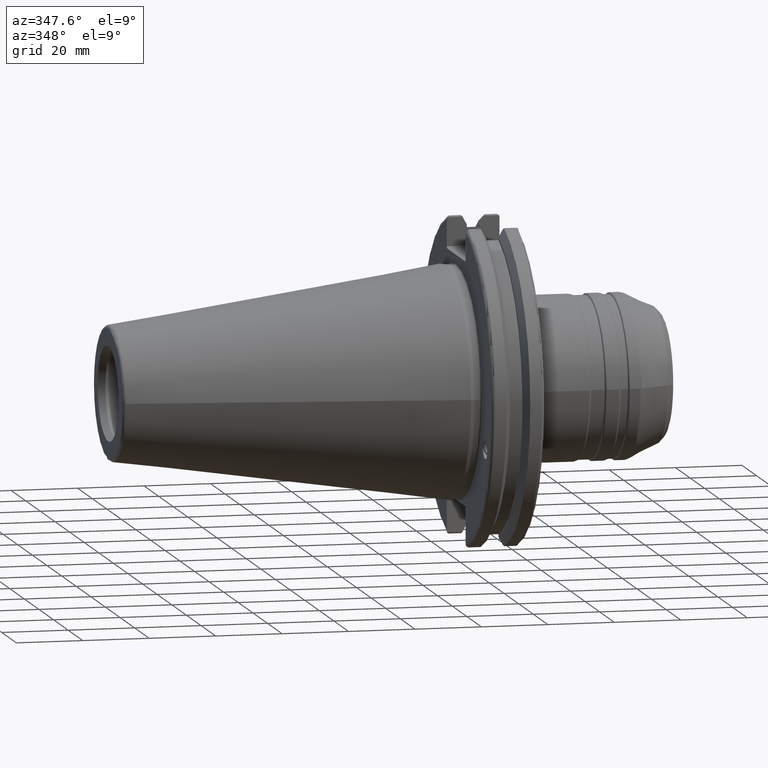
[diagram: clean part render]
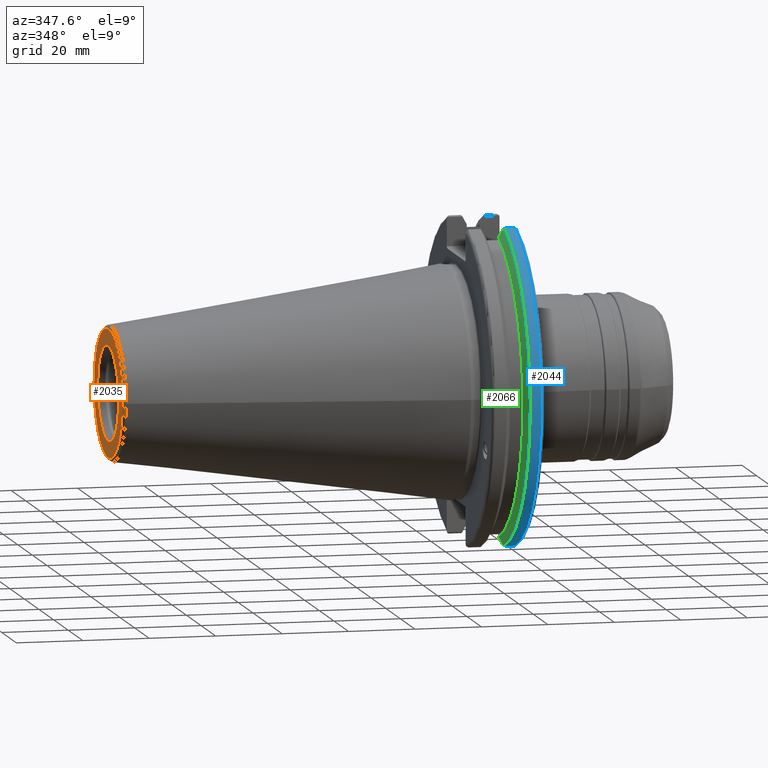
[diagram: same view with three faces highlighted in distinct colors, each labeled with its STEP entity id]
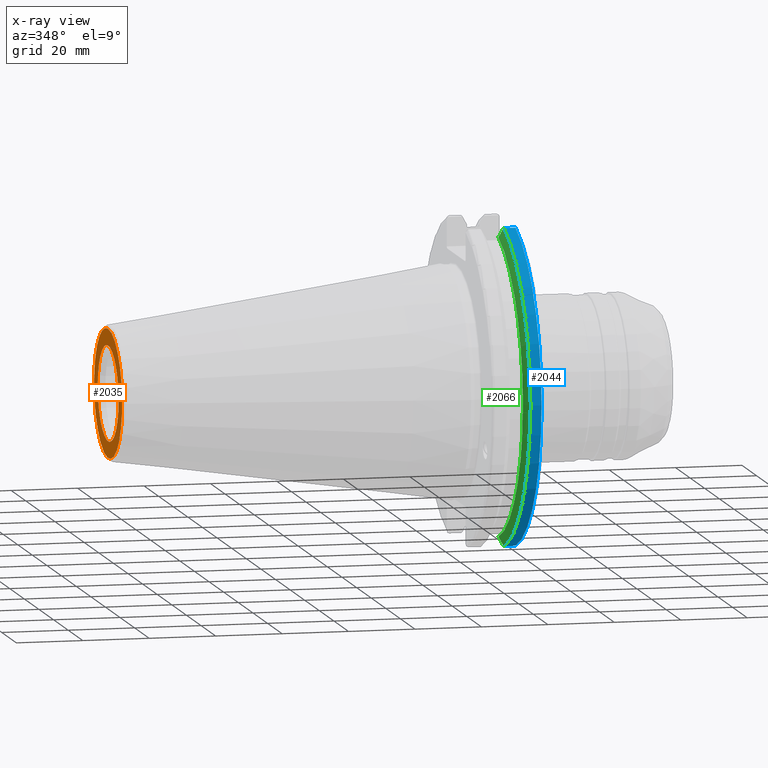
[diagram: x-ray of the same camera — body ghosted, the three highlighted faces saturated]
A machine part, auxiliary view with three faces highlighted in distinct colors.
The next image is the same camera in x-ray (body ghosted, the three faces saturated) — at least one of them is partly hidden behind the body in this view.
Their STEP definitions:

[orange] entity #2035 — the highlighted planar face has unit normal (-1, 0, 0).
#104=FACE_BOUND('',#547,.T.);
#122=PLANE('',#2323);
#431=FACE_OUTER_BOUND('',#546,.T.);
#546=EDGE_LOOP('',(#1791,#1792));
#547=EDGE_LOOP('',(#1793,#1794));
#725=CIRCLE('',#2320,19.2435889303637);
#726=CIRCLE('',#2321,19.2435889303637);
#728=CIRCLE('',#2324,14.2875);
#729=CIRCLE('',#2325,14.2875);
#956=VERTEX_POINT('',#3806);
#957=VERTEX_POINT('',#3808);
#958=VERTEX_POINT('',#3813);
#959=VERTEX_POINT('',#3814);
#1251=EDGE_CURVE('',#956,#957,#725,.T.);
#1252=EDGE_CURVE('',#957,#956,#726,.T.);
#1254=EDGE_CURVE('',#958,#959,#728,.T.);
#1255=EDGE_CURVE('',#959,#958,#729,.T.);
#1791=ORIENTED_EDGE('',*,*,#1252,.F.);
#1792=ORIENTED_EDGE('',*,*,#1251,.F.);
#1793=ORIENTED_EDGE('',*,*,#1254,.T.);
#1794=ORIENTED_EDGE('',*,*,#1255,.T.);
#2035=ADVANCED_FACE('',(#431,#104),#122,.T.);
#2320=AXIS2_PLACEMENT_3D('',#3809,#2922,#2923);
#2321=AXIS2_PLACEMENT_3D('',#3810,#2924,#2925);
#2323=AXIS2_PLACEMENT_3D('',#3812,#2928,#2929);
#2324=AXIS2_PLACEMENT_3D('',#3815,#2930,#2931);
#2325=AXIS2_PLACEMENT_3D('',#3816,#2932,#2933);
#2922=DIRECTION('center_axis',(1.,0.,0.));
#2923=DIRECTION('ref_axis',(0.,-1.,1.83697019872103E-16));
#2924=DIRECTION('center_axis',(1.,0.,0.));
#2925=DIRECTION('ref_axis',(0.,-1.,1.83697019872103E-16));
#2928=DIRECTION('center_axis',(-1.,0.,0.));
#2929=DIRECTION('ref_axis',(0.,0.,1.));
#2930=DIRECTION('center_axis',(1.,0.,0.));
#2931=DIRECTION('ref_axis',(0.,0.,-1.));
#2932=DIRECTION('center_axis',(1.,0.,0.));
#2933=DIRECTION('ref_axis',(0.,0.,-1.));
#3806=CARTESIAN_POINT('',(-101.6,-2.35665995876774E-15,19.2435889303637));
#3808=CARTESIAN_POINT('',(-101.6,19.2435889303637,-1.17832997938387E-15));
#3809=CARTESIAN_POINT('Origin',(-101.6,0.,0.));
#3810=CARTESIAN_POINT('Origin',(-101.6,0.,0.));
#3812=CARTESIAN_POINT('Origin',(-101.6,20.1083333333333,0.));
#3813=CARTESIAN_POINT('',(-101.6,14.2875,0.));
#3814=CARTESIAN_POINT('',(-101.6,-14.2875,-1.74971411428178E-15));
#3815=CARTESIAN_POINT('Origin',(-101.6,0.,0.));
#3816=CARTESIAN_POINT('Origin',(-101.6,0.,0.));

[blue] entity #2044 — the highlighted cylindrical surface (partial cylindrical patch) has radius 49.2125 mm, axis along (1, 0, 0).
#226=LINE('',#3853,#322);
#227=LINE('',#3859,#323);
#322=VECTOR('',#2965,10.);
#323=VECTOR('',#2968,10.);
#355=CYLINDRICAL_SURFACE('',#2336,49.2125);
#440=FACE_OUTER_BOUND('',#556,.T.);
#556=EDGE_LOOP('',(#1838,#1839,#1840,#1841));
#718=CIRCLE('',#2304,49.2125);
#732=CIRCLE('',#2337,49.2125);
#929=VERTEX_POINT('',#3662);
#930=VERTEX_POINT('',#3671);
#968=VERTEX_POINT('',#3852);
#969=VERTEX_POINT('',#3858);
#1214=EDGE_CURVE('',#929,#930,#718,.T.);
#1271=EDGE_CURVE('',#930,#968,#226,.T.);
#1273=EDGE_CURVE('',#969,#929,#227,.T.);
#1274=EDGE_CURVE('',#969,#968,#732,.T.);
#1838=ORIENTED_EDGE('',*,*,#1214,.F.);
#1839=ORIENTED_EDGE('',*,*,#1273,.F.);
#1840=ORIENTED_EDGE('',*,*,#1274,.T.);
#1841=ORIENTED_EDGE('',*,*,#1271,.F.);
#2044=ADVANCED_FACE('',(#440),#355,.T.);
#2304=AXIS2_PLACEMENT_3D('',#3672,#2875,#2876);
#2336=AXIS2_PLACEMENT_3D('',#3857,#2966,#2967);
#2337=AXIS2_PLACEMENT_3D('',#3860,#2969,#2970);
#2875=DIRECTION('center_axis',(1.,0.,0.));
#2876=DIRECTION('ref_axis',(0.,-1.,1.60812264967664E-16));
#2965=DIRECTION('',(-1.,0.,0.));
#2966=DIRECTION('center_axis',(1.,0.,0.));
#2967=DIRECTION('ref_axis',(0.,-1.,1.22464679914735E-16));
#2968=DIRECTION('',(1.,0.,0.));
#2969=DIRECTION('center_axis',(1.,0.,0.));
#2970=DIRECTION('ref_axis',(0.,0.,-1.));
#3662=CARTESIAN_POINT('',(18.05,-13.4317035994433,47.3440544806494));
#3671=CARTESIAN_POINT('',(18.05,-13.4317035994433,-47.3440544806494));
#3672=CARTESIAN_POINT('Origin',(18.05,0.,0.));
#3852=CARTESIAN_POINT('',(14.6602090340487,-13.4317035994433,-47.3440544806494));
#3853=CARTESIAN_POINT('',(16.8551045170244,-13.4317035994433,-47.3440544806494));
#3857=CARTESIAN_POINT('Origin',(16.8551045170244,0.,0.));
#3858=CARTESIAN_POINT('',(14.6602090340487,-13.4317035994433,47.3440544806494));
#3859=CARTESIAN_POINT('',(16.8551045170244,-13.4317035994433,47.3440544806494));
#3860=CARTESIAN_POINT('Origin',(14.6602090340487,0.,0.));

[green] entity #2066 — the highlighted conical surface has half-angle 60 deg.
#19=(
BOUNDED_CURVE()
B_SPLINE_CURVE(2,(#3703,#3704,#3705),.UNSPECIFIED.,.F.,.F.)
B_SPLINE_CURVE_WITH_KNOTS((3,3),(0.0558332664531015,0.331657177124503),
 .UNSPECIFIED.)
CURVE()
GEOMETRIC_REPRESENTATION_ITEM()
RATIONAL_B_SPLINE_CURVE((1.00012873636668,1.00038235574129,1.))
REPRESENTATION_ITEM('')
);
#20=(
BOUNDED_CURVE()
B_SPLINE_CURVE(2,(#3711,#3712,#3713),.UNSPECIFIED.,.F.,.F.)
B_SPLINE_CURVE_WITH_KNOTS((3,3),(0.,0.275823910673374),.UNSPECIFIED.)
CURVE()
GEOMETRIC_REPRESENTATION_ITEM()
RATIONAL_B_SPLINE_CURVE((1.,1.00038235574978,1.00012873636953))
REPRESENTATION_ITEM('')
);
#27=(
BOUNDED_CURVE()
B_SPLINE_CURVE(2,(#3854,#3855,#3856),.UNSPECIFIED.,.F.,.F.)
B_SPLINE_CURVE_WITH_KNOTS((3,3),(0.,0.0648240472896156),.UNSPECIFIED.)
CURVE()
GEOMETRIC_REPRESENTATION_ITEM()
RATIONAL_B_SPLINE_CURVE((1.,1.00011477674884,1.00019140646027))
REPRESENTATION_ITEM('')
);
#28=(
BOUNDED_CURVE()
B_SPLINE_CURVE(2,(#3862,#3863,#3864),.UNSPECIFIED.,.F.,.F.)
B_SPLINE_CURVE_WITH_KNOTS((3,3),(0.325260944932494,0.3900849922222),
 .UNSPECIFIED.)
CURVE()
GEOMETRIC_REPRESENTATION_ITEM()
RATIONAL_B_SPLINE_CURVE((1.00019140645961,1.00011477674844,1.))
REPRESENTATION_ITEM('')
);
#69=CONICAL_SURFACE('',#2377,47.8172386482472,1.0471975511966);
#462=FACE_OUTER_BOUND('',#580,.T.);
#580=EDGE_LOOP('',(#1941,#1942,#1943,#1944,#1945,#1946));
#732=CIRCLE('',#2337,49.2125);
#750=CIRCLE('',#2376,46.4219772964944);
#936=VERTEX_POINT('',#3700);
#937=VERTEX_POINT('',#3702);
#938=VERTEX_POINT('',#3708);
#939=VERTEX_POINT('',#3710);
#968=VERTEX_POINT('',#3852);
#969=VERTEX_POINT('',#3858);
#1223=EDGE_CURVE('',#937,#936,#19,.T.);
#1226=EDGE_CURVE('',#939,#938,#20,.T.);
#1272=EDGE_CURVE('',#968,#938,#27,.T.);
#1274=EDGE_CURVE('',#969,#968,#732,.T.);
#1275=EDGE_CURVE('',#937,#969,#28,.T.);
#1302=EDGE_CURVE('',#936,#939,#750,.T.);
#1941=ORIENTED_EDGE('',*,*,#1272,.F.);
#1942=ORIENTED_EDGE('',*,*,#1274,.F.);
#1943=ORIENTED_EDGE('',*,*,#1275,.F.);
#1944=ORIENTED_EDGE('',*,*,#1223,.T.);
#1945=ORIENTED_EDGE('',*,*,#1302,.T.);
#1946=ORIENTED_EDGE('',*,*,#1226,.T.);
#2066=ADVANCED_FACE('',(#462),#69,.T.);
#2337=AXIS2_PLACEMENT_3D('',#3860,#2969,#2970);
#2376=AXIS2_PLACEMENT_3D('',#3926,#3054,#3055);
#2377=AXIS2_PLACEMENT_3D('',#3927,#3056,#3057);
#2969=DIRECTION('center_axis',(1.,0.,0.));
#2970=DIRECTION('ref_axis',(0.,0.,-1.));
#3054=DIRECTION('center_axis',(1.,0.,0.));
#3055=DIRECTION('ref_axis',(0.,0.,-1.));
#3056=DIRECTION('center_axis',(1.,0.,0.));
#3057=DIRECTION('ref_axis',(0.,-1.,-1.22464679914735E-16));
#3700=CARTESIAN_POINT('',(13.0491,-12.95,44.5791147973604));
#3702=CARTESIAN_POINT('',(14.3818103943757,-12.95,46.9780755322918));
#3703=CARTESIAN_POINT('Ctrl Pts',(14.3818103943757,-12.95,46.9780755322918));
#3704=CARTESIAN_POINT('Ctrl Pts',(13.6979955094846,-12.95,45.7494966802924));
#3705=CARTESIAN_POINT('Ctrl Pts',(13.0491,-12.95,44.5791147973604));
#3708=CARTESIAN_POINT('',(14.3818103943757,-12.95,-46.9780755322917));
#3710=CARTESIAN_POINT('',(13.0491,-12.95,-44.5791147973604));
#3711=CARTESIAN_POINT('Ctrl Pts',(13.0491,-12.95,-44.5791147973604));
#3712=CARTESIAN_POINT('Ctrl Pts',(13.697995509466,-12.95,-45.749496680259));
#3713=CARTESIAN_POINT('Ctrl Pts',(14.3818103943757,-12.95,-46.9780755322917));
#3852=CARTESIAN_POINT('',(14.6602090340487,-13.4317035994433,-47.3440544806494));
#3854=CARTESIAN_POINT('Ctrl Pts',(14.6602090340487,-13.4317035994433,-47.3440544806494));
#3855=CARTESIAN_POINT('Ctrl Pts',(14.5199310333617,-13.1896660169964,-47.1601640966263));
#3856=CARTESIAN_POINT('Ctrl Pts',(14.3818103943757,-12.95,-46.9780755322917));
#3858=CARTESIAN_POINT('',(14.6602090340487,-13.4317035994433,47.3440544806494));
#3860=CARTESIAN_POINT('Origin',(14.6602090340487,0.,0.));
#3862=CARTESIAN_POINT('Ctrl Pts',(14.3818103943757,-12.95,46.9780755322918));
#3863=CARTESIAN_POINT('Ctrl Pts',(14.5199310333617,-13.1896660169966,47.1601640966264));
#3864=CARTESIAN_POINT('Ctrl Pts',(14.6602090340487,-13.4317035994433,47.3440544806494));
#3926=CARTESIAN_POINT('Origin',(13.0491,0.,0.));
#3927=CARTESIAN_POINT('Origin',(13.8546545170244,0.,0.));